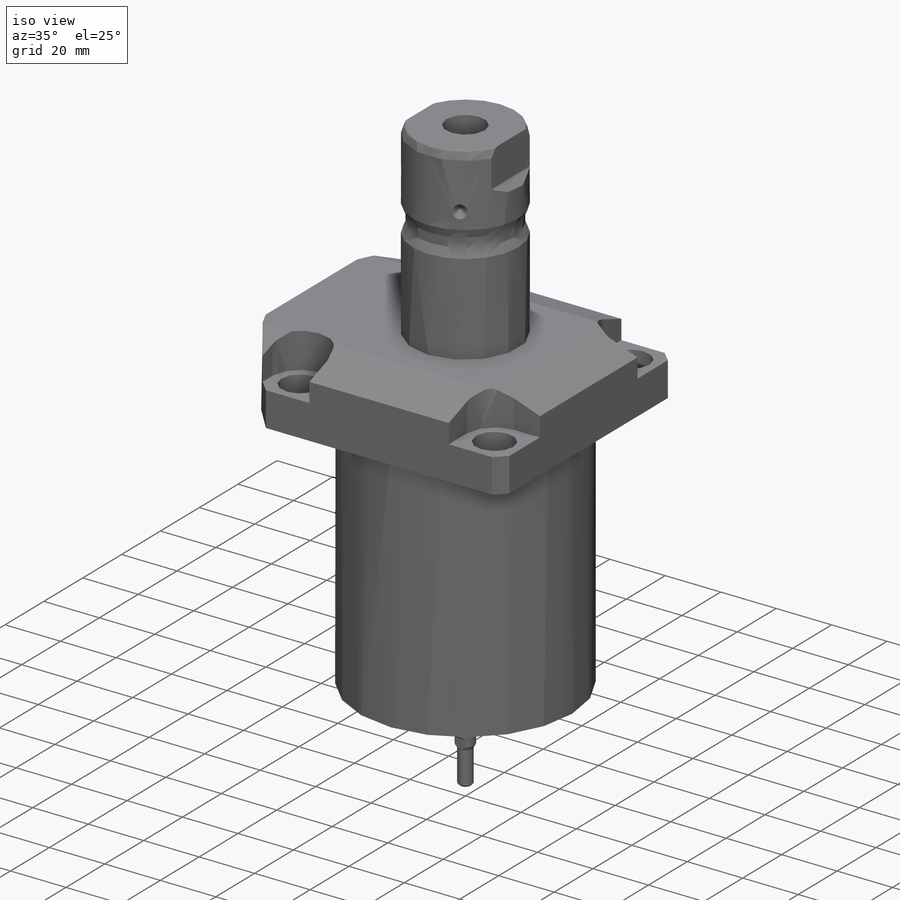
[diagram: iso view]
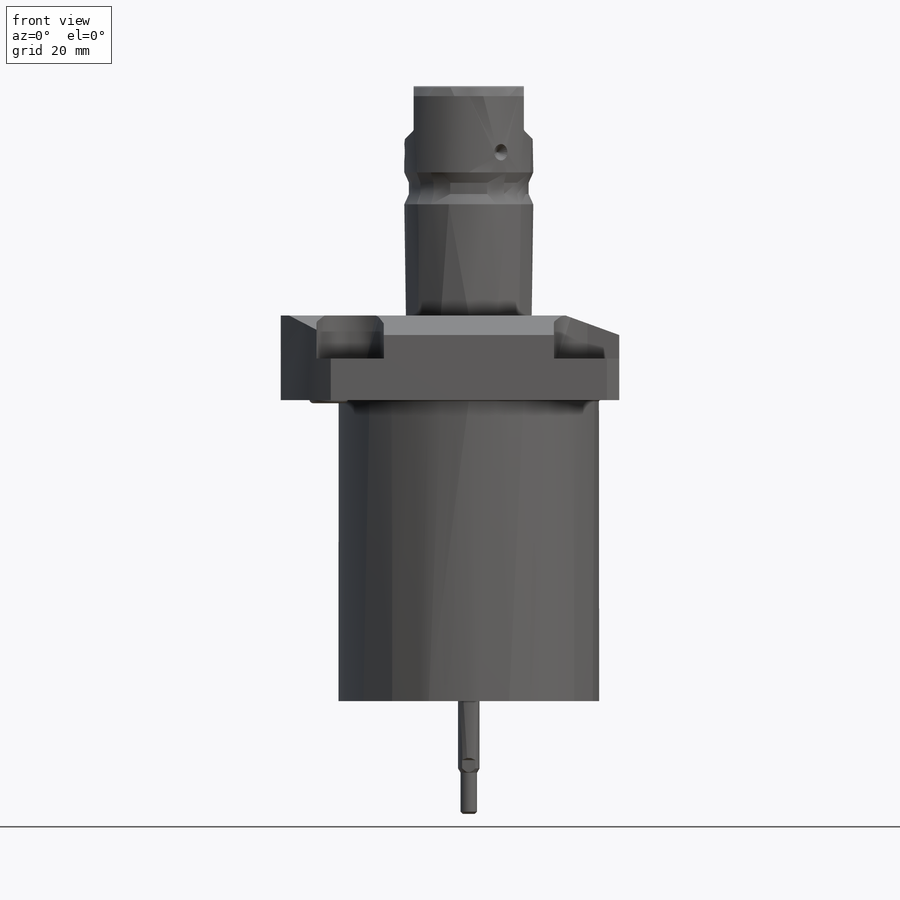
[diagram: front view]
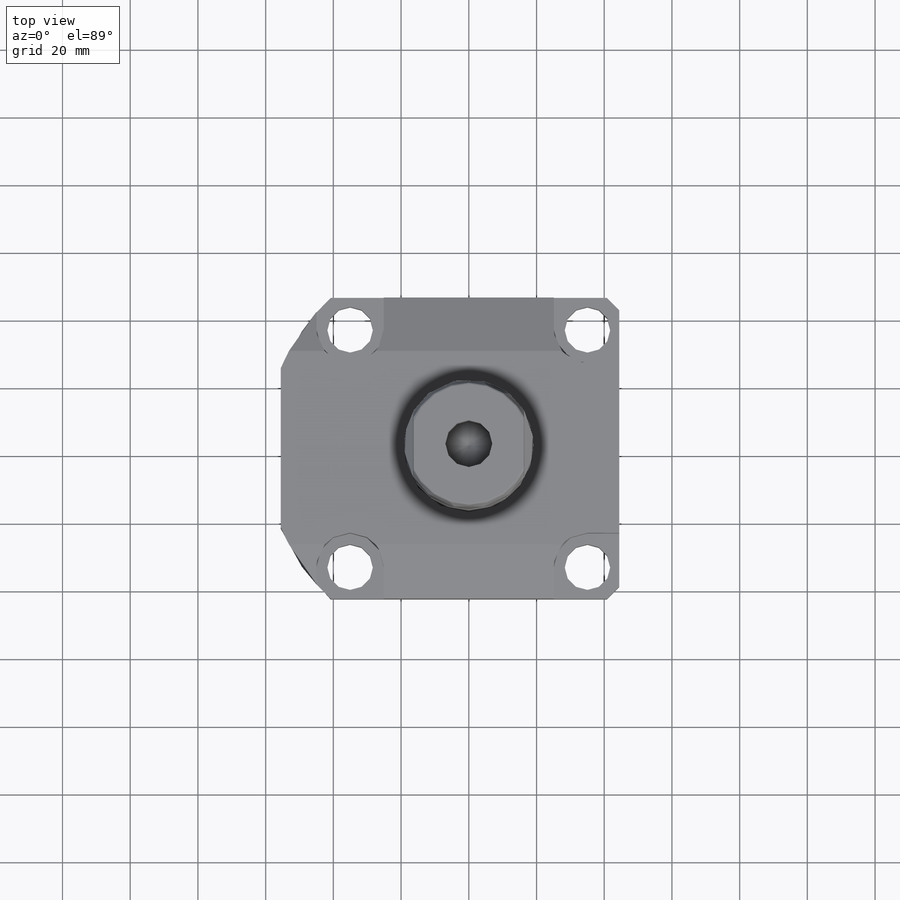
[diagram: top view]
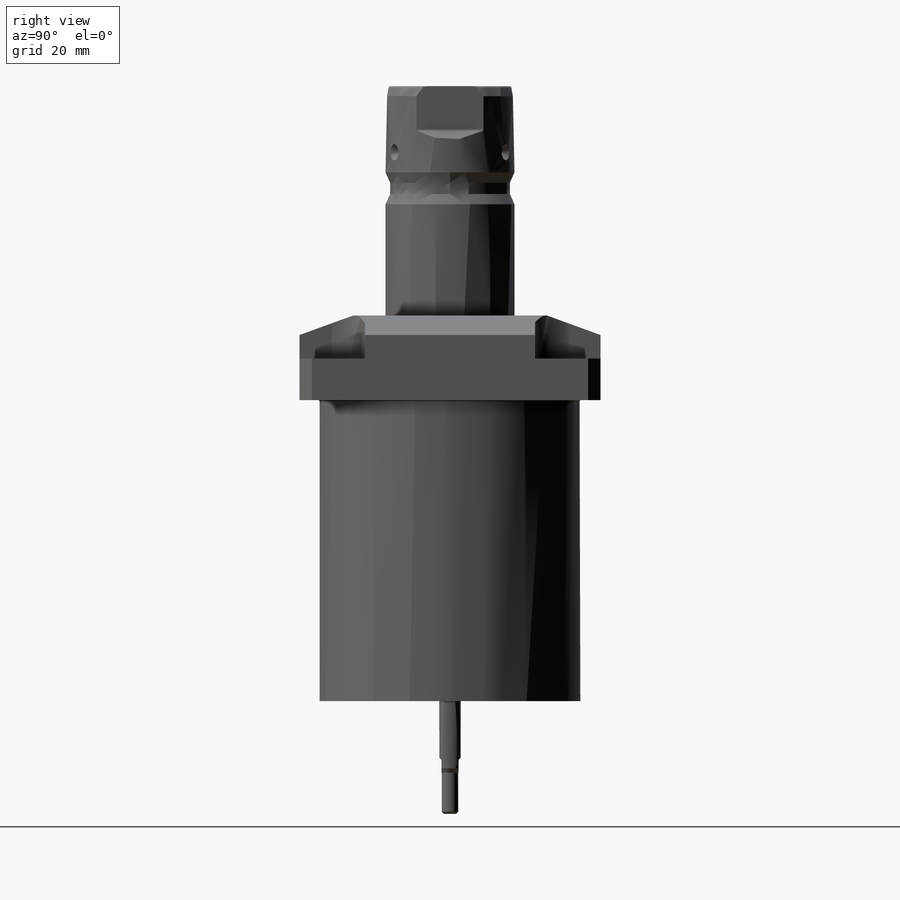
[diagram: right view]
SOLIDWORKS PART (.sldprt)
format: sldprt  version: not decoded by parser v0  size: 670,720 bytes
history: native  units: mm
features: sketch x20, plane x9, cut_extrude x7, cut_revolve x6, revolve x4, fillet x2, mirror x2, material x1, extrude x1, pattern_linear x1, hole x1, chamfer x1, pattern_circular x1 (+11 scaffold rows collapsed)
feature tree (67):
  scaffold x11  (default folders/planes/origin — collapsed)
  material  "Alloy Steel"
  plane  "Plane1"
  sketch  "Sketch1"  dims[D1=55.55mm D2=100.0mm D3=88.9mm]
  extrude  "Extrude1"  Depth=113.919mm
  sketch  "Sketch2"  dims[D1=120.65mm]
  cut_extrude  "Cut-Extrude1"  Depth=0mm
  plane  "Plane2"
  sketch  "Sketch3"  dims[D1=76.987mm D2=153.1874mm D3=88.9mm]
  cut_revolve  "Cut-Revolve1"  Angle=360deg
  fillet  "Fillet1"  Radius=0.381mm
  sketch  "Sketch4"  dims[D2=9.931mm D1=35.052mm D3=35.052mm D4=35.052mm]
  cut_extrude  "Cut-Extrude2"  Depth=12.7mm
  plane  "Plane3"
  sketch  "Sketch5"  dims[c1.D1=28.575mm c1.D2=15.875mm c2.D2=20.0deg c2.D1=15.875mm]
  cut_extrude  "Cut-Extrude9"  [1 undecoded]
  mirror  "Mirror1"
  plane  "Plane7"
  sketch  "Sketch9"  dims[c1.D1=15.875mm c1.D2=15.875mm c2.D2=20.0deg]
  cut_extrude  "Cut-Extrude7"  Depth=0mm
  plane  "Plane8"
  sketch  "Sketch20"  dims[D1=18.11mm D2=11.4046mm D3=1.4478mm D4=6.5024mm D5=1.016mm D6=2.4892mm D7=10.9728mm]
  cut_revolve  "Cut-Revolve4"  Angle=360deg
  mirror  "Mirror10"
  sketch  "Sketch10"  dims[D1=2.3622mm D2=0.2667mm D3=9.0424mm]
  revolve  "Revolve4"  Angle=360deg
  plane  "Plane9"
  sketch  "Sketch11"  dims[D1=2.3622mm D2=9.0424mm D3=0.2667mm]
  revolve  "Revolve2"  Angle=360deg
  plane  "Plane10"
  sketch  "S2D0007"  dims[c1.D1=0.254mm c1.D2=13.005mm c1.D3=15.6464mm c2.D3=45.0deg c2.D4=0.254mm c2.D5=21.4884mm c2.D6=13.3096mm c2.D7=~0.663907mm c3.D7=45.0deg c3.D8=~3.216607mm c3.D9=11.8872mm c3.D10=14.1732mm]
  cut_revolve  "Cut-Revolve2"  Angle=360deg
  pattern_linear  "LPattern1"  Count1=2 Count2=1 Spacing1=25.9588mm Spacing2=2.54mm
  plane  "Plane12"
  sketch  "Sketch15"  dims[c1.D2=1.016mm c1.D4=7.925mm c1.D6=7.9248mm c1.D1=93.6498mm c1.D3=38.1mm c1.D5=30.175mm c2.D6=35.001mm c2.D2=1.016mm c3.D2=20.0deg c3.D7=2.921mm c3.D1=181.635mm]
  revolve  "Revolve3"  Angle=360deg
  plane  "Plane13"
  sketch  "Sketch16"  dims[c1.D4=0.762mm c1.D1=32.5882mm c1.D2=2.7559mm c2.D2=45.0deg c2.D3=12.7mm c2.D1=32.563mm c3.D3=12.7mm]
  cut_extrude  "Cut-Extrude8"  Depth=106.68mm
  hole  "Hole1"  Diameter=13.487mm Depth=12.319mm
  sketch  "Sketch18"
  sketch  "Sketch17"  dims[Diameter=13.487mm Depth=12.319mm]
  chamfer  "Chamfer1"  Distance=0.635mm Angle=45deg
  sketch  "Sketch21"  dims[c1.D1=13.8684mm c1.D2=~9.193092mm c2.D2=59.0deg c2.D3=25.4mm]
  cut_revolve  "Cut-Revolve5"  Angle=360deg
  fillet  "Fillet2"  Radius=0.635mm
  sketch  "Sketch22"  dims[c1.D2=7.9248mm c1.D1=4.826mm c2.D2=~1.525555mm c3.D2=45.0deg c3.D3=~75.117379mm c4.D2=10.668mm c4.D3=~3.242135mm c5.D3=45.0deg]
  cut_revolve  "Cut-Revolve6"  Angle=360deg
  pattern_circular  "CirPattern1"  Count=3 Angle=360deg
  sketch  "Sketch23"  dims[c1.D1=~208.941585mm c1.D2=~34.418585mm c2.D2=45.0deg c2.D3=~34.418585mm c3.D3=45.0deg c4.D3=~3.387326mm c4.D2=~3.380807mm c4.D1=~214.90983mm c5.D2=~34.418585mm c6.D2=45.0deg c6.D3=~34.418585mm c7.D3=30.0deg c7.D4=~4.87681mm c7.D5=~6.350013mm c7.D6=~12.157922mm c7.D7=~0.635001mm]
  revolve  "Revolve5"  Angle=360deg
  sketch  "Sketch24"  dims[D1=~5.00381mm D2=~15.875032mm D3=45.0deg]
  cut_extrude  "Cut-Extrude10"  Depth=7.620015mm
  sketch  "Sketch25"  dims[D1=~23.291847mm D2=~28.702057mm D3=~1.320803mm]
  cut_revolve  "Cut-Revolve7"  Angle=360deg
  sketch  "Sketch26"  dims[D3=~38.862078mm D4=~2.540005mm D5=~2.540005mm D6=~2.540005mm D1=15.0deg D2=60.0deg]
  cut_extrude  "Cut-Extrude11"  Depth=7.620015mm
decode coverage: 42 of 46 modeling features carry decoded parameters
note: ~ marks probable driven/reference dimensions
note: 1 parameter value undecoded
note: suppression state not decoded; provenance and decode notes live in map.json
